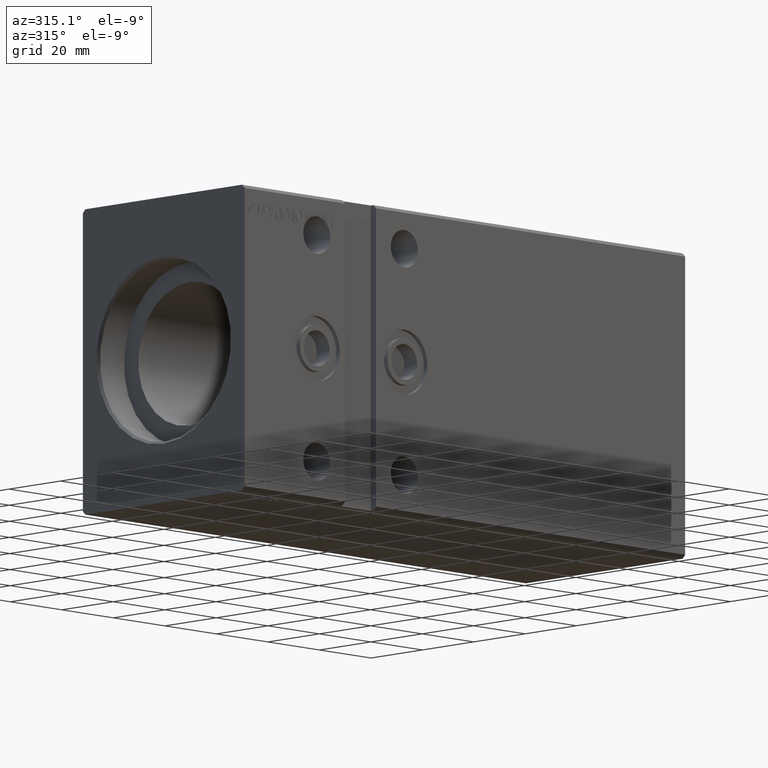
[diagram: clean part render]
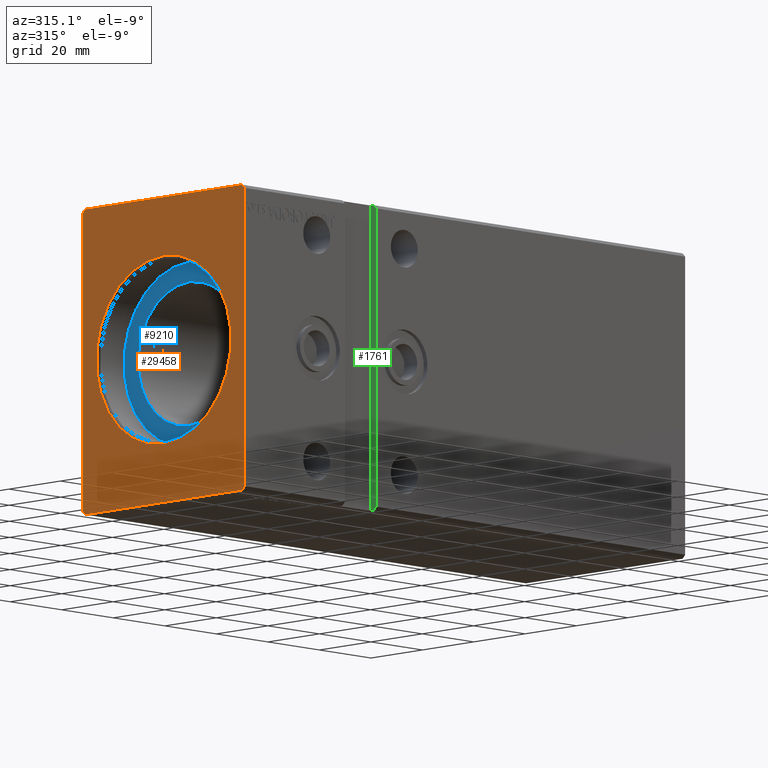
[diagram: same view with three faces highlighted in distinct colors, each labeled with its STEP entity id]
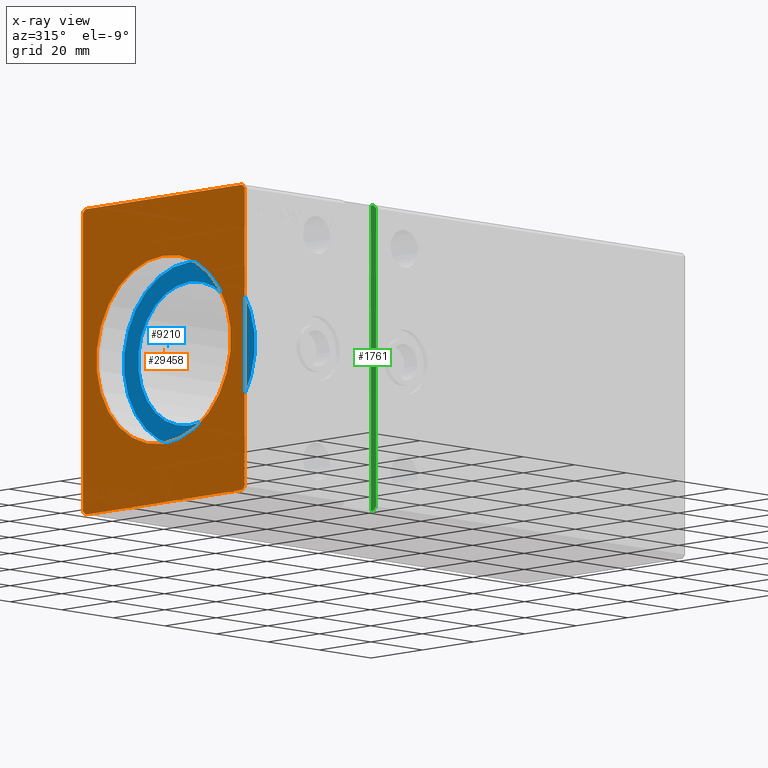
[diagram: x-ray of the same camera — body ghosted, the three highlighted faces saturated]
A machine part, auxiliary view with three faces highlighted in distinct colors.
The next image is the same camera in x-ray (body ghosted, the three faces saturated) — at least one of them is partly hidden behind the body in this view.
Their STEP definitions:

[orange] entity #29458 — the highlighted planar face has unit normal (1, 0, 0).
#541 = VECTOR ( 'NONE', #15380, 999.9999999999998863 ) ;
#605 = CARTESIAN_POINT ( 'NONE',  ( 0.000000000000000000, -30.50000000000000711, -42.50000000000000711 ) ) ;
#1155 = VECTOR ( 'NONE', #34228, 1000.000000000000000 ) ;
#1188 = ORIENTED_EDGE ( 'NONE', *, *, #2623, .F. ) ;
#2623 = EDGE_CURVE ( 'NONE', #15406, #27059, #12758, .T. ) ;
#3333 = LINE ( 'NONE', #7016, #28046 ) ;
#3391 = ORIENTED_EDGE ( 'NONE', *, *, #15024, .F. ) ;
#4247 = CARTESIAN_POINT ( 'NONE',  ( 0.000000000000000000, 0.000000000000000000, 26.20000000000000284 ) ) ;
#4881 = FACE_OUTER_BOUND ( 'NONE', #10958, .T. ) ;
#4962 = EDGE_CURVE ( 'NONE', #11602, #13245, #39137, .T. ) ;
#5934 = VECTOR ( 'NONE', #9682, 999.9999999999998863 ) ;
#6920 = CARTESIAN_POINT ( 'NONE',  ( 0.000000000000000000, -31.50000000000000000, -41.50000000000000711 ) ) ;
#7016 = CARTESIAN_POINT ( 'NONE',  ( 0.000000000000000000, 31.50000000000001421, 41.49999999999999289 ) ) ;
#8036 = DIRECTION ( 'NONE',  ( 1.000000000000000000, 0.000000000000000000, 0.000000000000000000 ) ) ;
#8377 = ORIENTED_EDGE ( 'NONE', *, *, #38653, .F. ) ;
#9682 = DIRECTION ( 'NONE',  ( 0.000000000000000000, 0.7071067811865462405, 0.7071067811865489050 ) ) ;
#9856 = EDGE_CURVE ( 'NONE', #13245, #32188, #13473, .T. ) ;
#10554 = ORIENTED_EDGE ( 'NONE', *, *, #31301, .F. ) ;
#10958 = EDGE_LOOP ( 'NONE', ( #20221, #3391, #1188, #10554, #18541, #22493, #14844, #8377 ) ) ;
#11602 = VERTEX_POINT ( 'NONE', #24969 ) ;
#11623 = VECTOR ( 'NONE', #29015, 1000.000000000000000 ) ;
#11724 = EDGE_CURVE ( 'NONE', #18194, #26702, #12582, .T. ) ;
#11769 = CARTESIAN_POINT ( 'NONE',  ( 0.000000000000000000, 31.50000000000001421, 41.49999999999999289 ) ) ;
#12582 = CIRCLE ( 'NONE', #34903, 26.20000000000000284 ) ;
#12758 = LINE ( 'NONE', #25515, #5934 ) ;
#12762 = VERTEX_POINT ( 'NONE', #17977 ) ;
#12771 = LINE ( 'NONE', #34772, #11623 ) ;
#13075 = DIRECTION ( 'NONE',  ( 0.000000000000000000, 0.7071067811865451302, -0.7071067811865500152 ) ) ;
#13245 = VERTEX_POINT ( 'NONE', #27987 ) ;
#13473 = LINE ( 'NONE', #6920, #25013 ) ;
#14505 = LINE ( 'NONE', #24578, #1155 ) ;
#14634 = EDGE_LOOP ( 'NONE', ( #21341, #18240 ) ) ;
#14844 = ORIENTED_EDGE ( 'NONE', *, *, #40129, .F. ) ;
#15024 = EDGE_CURVE ( 'NONE', #27059, #31086, #39083, .T. ) ;
#15047 = EDGE_CURVE ( 'NONE', #26702, #18194, #22531, .T. ) ;
#15380 = DIRECTION ( 'NONE',  ( 0.000000000000000000, -0.7071067811865462405, -0.7071067811865489050 ) ) ;
#15406 = VERTEX_POINT ( 'NONE', #26494 ) ;
#17409 = DIRECTION ( 'NONE',  ( 1.000000000000000000, 0.000000000000000000, 0.000000000000000000 ) ) ;
#17495 = CARTESIAN_POINT ( 'NONE',  ( 0.000000000000000000, 31.50000000000001421, -41.50000000000000711 ) ) ;
#17977 = CARTESIAN_POINT ( 'NONE',  ( 0.000000000000000000, 30.50000000000001421, 42.49999999999999289 ) ) ;
#18194 = VERTEX_POINT ( 'NONE', #4247 ) ;
#18231 = PLANE ( 'NONE',  #35221 ) ;
#18240 = ORIENTED_EDGE ( 'NONE', *, *, #15047, .T. ) ;
#18541 = ORIENTED_EDGE ( 'NONE', *, *, #9856, .F. ) ;
#19179 = VECTOR ( 'NONE', #29479, 1000.000000000000000 ) ;
#19565 = DIRECTION ( 'NONE',  ( 0.000000000000000000, -0.7071067811865474617, 0.7071067811865474617 ) ) ;
#19985 = CARTESIAN_POINT ( 'NONE',  ( 0.000000000000000000, 31.50000000000001421, -41.50000000000000711 ) ) ;
#20221 = ORIENTED_EDGE ( 'NONE', *, *, #31239, .F. ) ;
#20509 = CARTESIAN_POINT ( 'NONE',  ( 0.000000000000000000, 0.000000000000000000, 0.000000000000000000 ) ) ;
#21341 = ORIENTED_EDGE ( 'NONE', *, *, #11724, .T. ) ;
#22493 = ORIENTED_EDGE ( 'NONE', *, *, #4962, .F. ) ;
#22531 = CIRCLE ( 'NONE', #25815, 26.20000000000000284 ) ;
#23777 = CARTESIAN_POINT ( 'NONE',  ( 0.000000000000000000, -30.50000000000000355, 42.49999999999999289 ) ) ;
#24578 = CARTESIAN_POINT ( 'NONE',  ( 0.000000000000000000, 30.50000000000001421, 42.49999999999999289 ) ) ;
#24969 = CARTESIAN_POINT ( 'NONE',  ( 0.000000000000000000, -31.50000000000000000, 41.49999999999999289 ) ) ;
#25013 = VECTOR ( 'NONE', #13075, 1000.000000000000114 ) ;
#25515 = CARTESIAN_POINT ( 'NONE',  ( 0.000000000000000000, 30.50000000000001776, -42.50000000000000711 ) ) ;
#25815 = AXIS2_PLACEMENT_3D ( 'NONE', #30243, #8036, #39291 ) ;
#26494 = CARTESIAN_POINT ( 'NONE',  ( 0.000000000000000000, 30.50000000000001776, -42.50000000000000711 ) ) ;
#26702 = VERTEX_POINT ( 'NONE', #31353 ) ;
#26800 = CARTESIAN_POINT ( 'NONE',  ( 0.000000000000000000, -31.50000000000000000, 41.49999999999999289 ) ) ;
#27059 = VERTEX_POINT ( 'NONE', #19985 ) ;
#27675 = FACE_BOUND ( 'NONE', #14634, .T. ) ;
#27987 = CARTESIAN_POINT ( 'NONE',  ( 0.000000000000000000, -31.50000000000000000, -41.50000000000000711 ) ) ;
#28046 = VECTOR ( 'NONE', #19565, 1000.000000000000114 ) ;
#28463 = VERTEX_POINT ( 'NONE', #23777 ) ;
#29015 = DIRECTION ( 'NONE',  ( 0.000000000000000000, 1.000000000000000000, 0.000000000000000000 ) ) ;
#29458 = ADVANCED_FACE ( 'NONE', ( #27675, #4881 ), #18231, .F. ) ;
#29479 = DIRECTION ( 'NONE',  ( 0.000000000000000000, 0.000000000000000000, -1.000000000000000000 ) ) ;
#30243 = CARTESIAN_POINT ( 'NONE',  ( 0.000000000000000000, 0.000000000000000000, 0.000000000000000000 ) ) ;
#30818 = LINE ( 'NONE', #31012, #541 ) ;
#31012 = CARTESIAN_POINT ( 'NONE',  ( 0.000000000000000000, -30.50000000000000355, 42.49999999999999289 ) ) ;
#31086 = VERTEX_POINT ( 'NONE', #11769 ) ;
#31239 = EDGE_CURVE ( 'NONE', #31086, #12762, #3333, .T. ) ;
#31301 = EDGE_CURVE ( 'NONE', #32188, #15406, #12771, .T. ) ;
#31353 = CARTESIAN_POINT ( 'NONE',  ( 0.000000000000000000, 3.208574613766065694E-15, -26.20000000000000284 ) ) ;
#32188 = VERTEX_POINT ( 'NONE', #605 ) ;
#33534 = DIRECTION ( 'NONE',  ( 0.000000000000000000, 0.000000000000000000, 1.000000000000000000 ) ) ;
#33773 = CARTESIAN_POINT ( 'NONE',  ( 0.000000000000000000, 0.000000000000000000, 0.000000000000000000 ) ) ;
#33972 = DIRECTION ( 'NONE',  ( 0.000000000000000000, 0.000000000000000000, -1.000000000000000000 ) ) ;
#34228 = DIRECTION ( 'NONE',  ( 0.000000000000000000, -1.000000000000000000, 0.000000000000000000 ) ) ;
#34772 = CARTESIAN_POINT ( 'NONE',  ( 0.000000000000000000, -30.50000000000000711, -42.50000000000000711 ) ) ;
#34903 = AXIS2_PLACEMENT_3D ( 'NONE', #33773, #37261, #33972 ) ;
#35221 = AXIS2_PLACEMENT_3D ( 'NONE', #20509, #17409, #36940 ) ;
#36940 = DIRECTION ( 'NONE',  ( 0.000000000000000000, 0.000000000000000000, -1.000000000000000000 ) ) ;
#37261 = DIRECTION ( 'NONE',  ( 1.000000000000000000, 0.000000000000000000, 0.000000000000000000 ) ) ;
#38653 = EDGE_CURVE ( 'NONE', #12762, #28463, #14505, .T. ) ;
#39083 = LINE ( 'NONE', #17495, #40248 ) ;
#39137 = LINE ( 'NONE', #26800, #19179 ) ;
#39291 = DIRECTION ( 'NONE',  ( 0.000000000000000000, 0.000000000000000000, -1.000000000000000000 ) ) ;
#40129 = EDGE_CURVE ( 'NONE', #28463, #11602, #30818, .T. ) ;
#40248 = VECTOR ( 'NONE', #33534, 1000.000000000000000 ) ;

[blue] entity #9210 — the highlighted planar face has unit normal (-1, 0, 0).
#250 = CARTESIAN_POINT ( 'NONE',  ( 10.00000000000000000, 3.122849337825750222E-15, -25.50000000000000000 ) ) ;
#2949 = CIRCLE ( 'NONE', #12126, 25.50000000000000000 ) ;
#4809 = EDGE_CURVE ( 'NONE', #18337, #40386, #16654, .T. ) ;
#6412 = CIRCLE ( 'NONE', #12974, 20.00000000000000000 ) ;
#8860 = DIRECTION ( 'NONE',  ( -1.000000000000000000, 0.000000000000000000, 0.000000000000000000 ) ) ;
#9210 = ADVANCED_FACE ( 'NONE', ( #22735, #37548 ), #38162, .T. ) ;
#9383 = CARTESIAN_POINT ( 'NONE',  ( 10.00000000000000000, 0.000000000000000000, 0.000000000000000000 ) ) ;
#9437 = AXIS2_PLACEMENT_3D ( 'NONE', #34027, #34227, #27252 ) ;
#9584 = DIRECTION ( 'NONE',  ( -1.000000000000000000, 0.000000000000000000, 0.000000000000000000 ) ) ;
#10180 = CARTESIAN_POINT ( 'NONE',  ( 10.00000000000000000, 0.000000000000000000, 25.50000000000000000 ) ) ;
#12126 = AXIS2_PLACEMENT_3D ( 'NONE', #18842, #9584, #31382 ) ;
#12130 = DIRECTION ( 'NONE',  ( 0.000000000000000000, 0.000000000000000000, 1.000000000000000000 ) ) ;
#12871 = DIRECTION ( 'NONE',  ( -1.000000000000000000, 0.000000000000000000, 0.000000000000000000 ) ) ;
#12974 = AXIS2_PLACEMENT_3D ( 'NONE', #31252, #8860, #33734 ) ;
#13121 = EDGE_LOOP ( 'NONE', ( #27068, #25315 ) ) ;
#15622 = DIRECTION ( 'NONE',  ( -1.000000000000000000, 0.000000000000000000, 0.000000000000000000 ) ) ;
#16571 = DIRECTION ( 'NONE',  ( 0.000000000000000000, 0.000000000000000000, 1.000000000000000000 ) ) ;
#16654 = CIRCLE ( 'NONE', #9437, 25.50000000000000000 ) ;
#18239 = EDGE_LOOP ( 'NONE', ( #28481, #20112 ) ) ;
#18337 = VERTEX_POINT ( 'NONE', #250 ) ;
#18842 = CARTESIAN_POINT ( 'NONE',  ( 10.00000000000000000, 0.000000000000000000, 0.000000000000000000 ) ) ;
#18851 = AXIS2_PLACEMENT_3D ( 'NONE', #34740, #15622, #12130 ) ;
#20112 = ORIENTED_EDGE ( 'NONE', *, *, #4809, .T. ) ;
#20181 = CIRCLE ( 'NONE', #18851, 20.00000000000000000 ) ;
#22527 = CARTESIAN_POINT ( 'NONE',  ( 10.00000000000000888, 2.449293598294706513E-15, -20.00000000000000000 ) ) ;
#22735 = FACE_BOUND ( 'NONE', #13121, .T. ) ;
#24063 = VERTEX_POINT ( 'NONE', #22527 ) ;
#24814 = EDGE_CURVE ( 'NONE', #40386, #18337, #2949, .T. ) ;
#25315 = ORIENTED_EDGE ( 'NONE', *, *, #37070, .F. ) ;
#27068 = ORIENTED_EDGE ( 'NONE', *, *, #38912, .F. ) ;
#27252 = DIRECTION ( 'NONE',  ( 0.000000000000000000, 0.000000000000000000, 1.000000000000000000 ) ) ;
#28481 = ORIENTED_EDGE ( 'NONE', *, *, #24814, .T. ) ;
#29040 = AXIS2_PLACEMENT_3D ( 'NONE', #9383, #12871, #16571 ) ;
#31252 = CARTESIAN_POINT ( 'NONE',  ( 10.00000000000000888, 0.000000000000000000, 0.000000000000000000 ) ) ;
#31382 = DIRECTION ( 'NONE',  ( 0.000000000000000000, 0.000000000000000000, 1.000000000000000000 ) ) ;
#31625 = CARTESIAN_POINT ( 'NONE',  ( 10.00000000000000888, 0.000000000000000000, 20.00000000000000000 ) ) ;
#33734 = DIRECTION ( 'NONE',  ( 0.000000000000000000, 0.000000000000000000, 1.000000000000000000 ) ) ;
#34027 = CARTESIAN_POINT ( 'NONE',  ( 10.00000000000000000, 0.000000000000000000, 0.000000000000000000 ) ) ;
#34227 = DIRECTION ( 'NONE',  ( -1.000000000000000000, 0.000000000000000000, 0.000000000000000000 ) ) ;
#34740 = CARTESIAN_POINT ( 'NONE',  ( 10.00000000000000888, 0.000000000000000000, 0.000000000000000000 ) ) ;
#37070 = EDGE_CURVE ( 'NONE', #24063, #40156, #20181, .T. ) ;
#37548 = FACE_OUTER_BOUND ( 'NONE', #18239, .T. ) ;
#38162 = PLANE ( 'NONE',  #29040 ) ;
#38912 = EDGE_CURVE ( 'NONE', #40156, #24063, #6412, .T. ) ;
#40156 = VERTEX_POINT ( 'NONE', #31625 ) ;
#40386 = VERTEX_POINT ( 'NONE', #10180 ) ;

[green] entity #1761 — the highlighted planar face has unit normal (1, -0, 0).
#139 = DIRECTION ( 'NONE',  ( 1.154479749032189718E-16, -0.7071067811865462405, -0.7071067811865489050 ) ) ;
#424 = FACE_OUTER_BOUND ( 'NONE', #32719, .T. ) ;
#1761 = ADVANCED_FACE ( 'NONE', ( #424 ), #34536, .F. ) ;
#1860 = CARTESIAN_POINT ( 'NONE',  ( 51.00000000000000000, -31.50000000000000000, 41.49999999999999289 ) ) ;
#2400 = AXIS2_PLACEMENT_3D ( 'NONE', #6389, #6590, #15424 ) ;
#2442 = CARTESIAN_POINT ( 'NONE',  ( 51.00000000000000711, -29.50000000000000000, -42.50000000000000711 ) ) ;
#2611 = ORIENTED_EDGE ( 'NONE', *, *, #10057, .T. ) ;
#2815 = LINE ( 'NONE', #18846, #4391 ) ;
#3087 = EDGE_CURVE ( 'NONE', #4589, #6773, #37799, .T. ) ;
#3311 = VECTOR ( 'NONE', #19188, 1000.000000000000000 ) ;
#4391 = VECTOR ( 'NONE', #139, 999.9999999999998863 ) ;
#4589 = VERTEX_POINT ( 'NONE', #2442 ) ;
#5766 = ORIENTED_EDGE ( 'NONE', *, *, #29273, .F. ) ;
#5854 = LINE ( 'NONE', #6055, #17204 ) ;
#5967 = EDGE_CURVE ( 'NONE', #6773, #13494, #37891, .T. ) ;
#6055 = CARTESIAN_POINT ( 'NONE',  ( 51.00000000000000711, -29.50000000000000000, -42.50000000000000711 ) ) ;
#6193 = DIRECTION ( 'NONE',  ( -1.632680918566406547E-16, -0.000000000000000000, 1.000000000000000000 ) ) ;
#6389 = CARTESIAN_POINT ( 'NONE',  ( 51.00000000000000000, -29.50000000000000000, 42.49999999999999289 ) ) ;
#6590 = DIRECTION ( 'NONE',  ( 1.000000000000000000, -8.991269581639754713E-33, 1.632680918566406547E-16 ) ) ;
#6773 = VERTEX_POINT ( 'NONE', #29544 ) ;
#7153 = LINE ( 'NONE', #19697, #29932 ) ;
#7687 = EDGE_CURVE ( 'NONE', #15098, #8738, #34145, .T. ) ;
#7756 = DIRECTION ( 'NONE',  ( 1.154479749032191444E-16, 0.7071067811865451302, -0.7071067811865499042 ) ) ;
#8672 = CARTESIAN_POINT ( 'NONE',  ( 51.00000000000000000, -31.50000000000000000, 42.49999999999999289 ) ) ;
#8738 = VERTEX_POINT ( 'NONE', #1860 ) ;
#9423 = ORIENTED_EDGE ( 'NONE', *, *, #7687, .T. ) ;
#10057 = EDGE_CURVE ( 'NONE', #4589, #39732, #5854, .T. ) ;
#11322 = ORIENTED_EDGE ( 'NONE', *, *, #3087, .F. ) ;
#11611 = ORIENTED_EDGE ( 'NONE', *, *, #30297, .F. ) ;
#12800 = CARTESIAN_POINT ( 'NONE',  ( 51.00000000000000000, -29.50000000000000000, 42.49999999999999289 ) ) ;
#13494 = VERTEX_POINT ( 'NONE', #22728 ) ;
#15098 = VERTEX_POINT ( 'NONE', #20593 ) ;
#15140 = VECTOR ( 'NONE', #16008, 1000.000000000000000 ) ;
#15424 = DIRECTION ( 'NONE',  ( 1.632680918566406547E-16, 0.000000000000000000, -1.000000000000000000 ) ) ;
#16008 = DIRECTION ( 'NONE',  ( -1.632680918566406547E-16, -0.000000000000000000, 1.000000000000000000 ) ) ;
#17204 = VECTOR ( 'NONE', #35418, 1000.000000000000000 ) ;
#18846 = CARTESIAN_POINT ( 'NONE',  ( 50.99999999999999289, -30.50000000000001421, 42.49999999999998579 ) ) ;
#19188 = DIRECTION ( 'NONE',  ( -0.000000000000000000, -1.000000000000000000, -5.507058653894625237E-17 ) ) ;
#19697 = CARTESIAN_POINT ( 'NONE',  ( 51.00000000000000711, -31.49999999999999289, -41.50000000000001421 ) ) ;
#20593 = CARTESIAN_POINT ( 'NONE',  ( 51.00000000000000711, -31.50000000000000000, -41.50000000000000711 ) ) ;
#22728 = CARTESIAN_POINT ( 'NONE',  ( 51.00000000000000000, -30.50000000000000355, 42.49999999999999289 ) ) ;
#25046 = VECTOR ( 'NONE', #6193, 1000.000000000000000 ) ;
#29273 = EDGE_CURVE ( 'NONE', #15098, #39732, #7153, .T. ) ;
#29544 = CARTESIAN_POINT ( 'NONE',  ( 51.00000000000000000, -29.50000000000000000, 42.49999999999999289 ) ) ;
#29932 = VECTOR ( 'NONE', #7756, 1000.000000000000114 ) ;
#30297 = EDGE_CURVE ( 'NONE', #13494, #8738, #2815, .T. ) ;
#32719 = EDGE_LOOP ( 'NONE', ( #38025, #11322, #2611, #5766, #9423, #11611 ) ) ;
#34145 = LINE ( 'NONE', #8672, #25046 ) ;
#34536 = PLANE ( 'NONE',  #2400 ) ;
#35418 = DIRECTION ( 'NONE',  ( -0.000000000000000000, -1.000000000000000000, -5.507058653894625237E-17 ) ) ;
#36055 = CARTESIAN_POINT ( 'NONE',  ( 51.00000000000000711, -30.50000000000000711, -42.50000000000000711 ) ) ;
#37192 = CARTESIAN_POINT ( 'NONE',  ( 51.00000000000000000, -29.50000000000000000, 42.49999999999999289 ) ) ;
#37799 = LINE ( 'NONE', #37192, #15140 ) ;
#37891 = LINE ( 'NONE', #12800, #3311 ) ;
#38025 = ORIENTED_EDGE ( 'NONE', *, *, #5967, .F. ) ;
#39732 = VERTEX_POINT ( 'NONE', #36055 ) ;